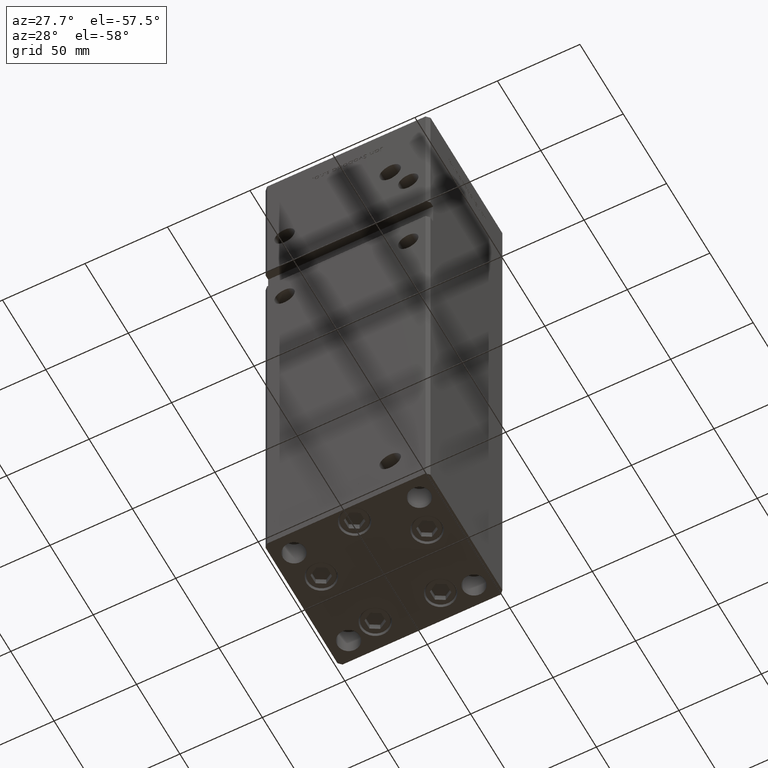
[diagram: clean part render]
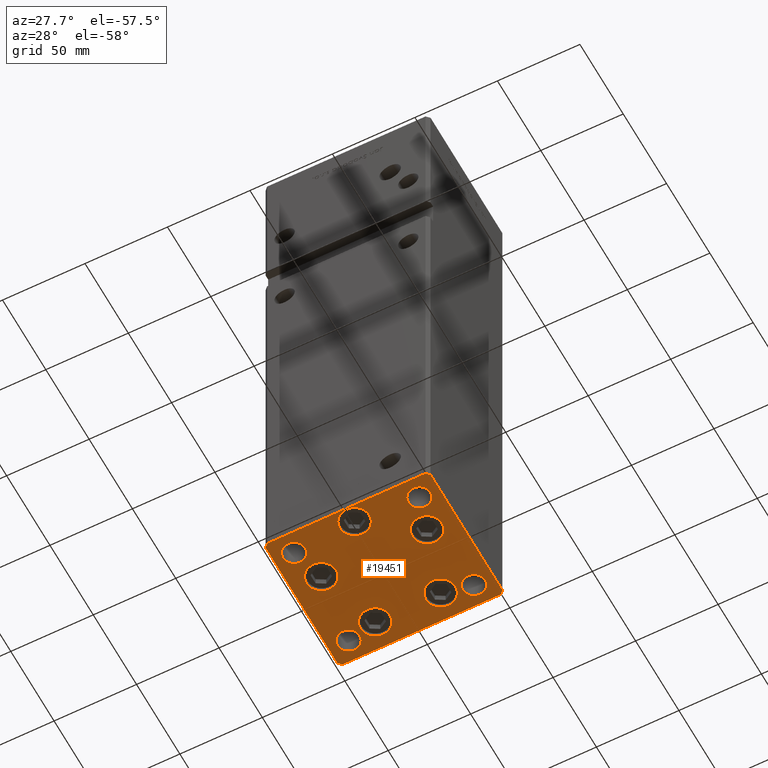
[diagram: same view with one face highlighted and labeled with its STEP entity id]
A machine part, auxiliary view. The second image highlights one B-rep face of the part: STEP entity #19451.
In plain terms, the highlighted planar face has unit normal (0, 0, -1).
Its self-contained STEP definition (entity closure, byte-faithful):
#100 = DIRECTION ( 'NONE',  ( 1.000000000000000000, 0.000000000000000000, 0.000000000000000000 ) ) ;
#206 = AXIS2_PLACEMENT_3D ( 'NONE', #43637, #10034, #31532 ) ;
#555 = CARTESIAN_POINT ( 'NONE',  ( 9.000000000000003553, -34.00000000000000000, 0.000000000000000000 ) ) ;
#656 = ORIENTED_EDGE ( 'NONE', *, *, #43449, .T. ) ;
#711 = EDGE_LOOP ( 'NONE', ( #38527, #4896 ) ) ;
#969 = ORIENTED_EDGE ( 'NONE', *, *, #36350, .T. ) ;
#1832 = FACE_OUTER_BOUND ( 'NONE', #18169, .T. ) ;
#1983 = CARTESIAN_POINT ( 'NONE',  ( -41.05550741379015278, -11.33333333333333925, 0.000000000000000000 ) ) ;
#1986 = CIRCLE ( 'NONE', #7969, 9.000000000000001776 ) ;
#2117 = DIRECTION ( 'NONE',  ( 1.000000000000000000, 0.000000000000000000, 0.000000000000000000 ) ) ;
#2321 = LINE ( 'NONE', #50699, #32589 ) ;
#2326 = EDGE_CURVE ( 'NONE', #43005, #35979, #8849, .T. ) ;
#2511 = CARTESIAN_POINT ( 'NONE',  ( 44.75000000000000000, -31.49999999999999289, 0.000000000000000000 ) ) ;
#3044 = AXIS2_PLACEMENT_3D ( 'NONE', #16014, #48044, #35399 ) ;
#3196 = CIRCLE ( 'NONE', #27235, 6.749999999999999112 ) ;
#3468 = DIRECTION ( 'NONE',  ( 0.000000000000000000, -0.000000000000000000, -1.000000000000000000 ) ) ;
#3713 = DIRECTION ( 'NONE',  ( 1.000000000000000000, 0.000000000000000000, 0.000000000000000000 ) ) ;
#4017 = VERTEX_POINT ( 'NONE', #12299 ) ;
#4048 = CARTESIAN_POINT ( 'NONE',  ( 19.82068048781373193, 27.62500000000000000, 0.000000000000000000 ) ) ;
#4236 = CARTESIAN_POINT ( 'NONE',  ( -47.99999999999999289, -43.50000000000001421, 0.000000000000000000 ) ) ;
#4896 = ORIENTED_EDGE ( 'NONE', *, *, #49421, .T. ) ;
#5097 = EDGE_CURVE ( 'NONE', #40206, #34724, #47684, .T. ) ;
#5565 = EDGE_LOOP ( 'NONE', ( #16692, #46830 ) ) ;
#5755 = EDGE_CURVE ( 'NONE', #30531, #30189, #29383, .T. ) ;
#5803 = EDGE_LOOP ( 'NONE', ( #16430, #17263 ) ) ;
#5999 = EDGE_CURVE ( 'NONE', #16109, #51901, #24224, .T. ) ;
#6126 = DIRECTION ( 'NONE',  ( -0.7071067811865474617, 0.7071067811865474617, 0.000000000000000000 ) ) ;
#6145 = FACE_BOUND ( 'NONE', #33460, .T. ) ;
#6253 = EDGE_CURVE ( 'NONE', #20042, #9157, #25957, .T. ) ;
#6361 = VERTEX_POINT ( 'NONE', #10983 ) ;
#6769 = VERTEX_POINT ( 'NONE', #42243 ) ;
#7045 = CARTESIAN_POINT ( 'NONE',  ( -23.05550741379014923, -11.33333333333333748, 0.000000000000000000 ) ) ;
#7076 = DIRECTION ( 'NONE',  ( 1.000000000000000000, 0.000000000000000000, 0.000000000000000000 ) ) ;
#7083 = CARTESIAN_POINT ( 'NONE',  ( -47.99999999999999289, -43.50000000000001421, 0.000000000000000000 ) ) ;
#7113 = VECTOR ( 'NONE', #23451, 1000.000000000000000 ) ;
#7114 = EDGE_CURVE ( 'NONE', #44183, #26660, #42329, .T. ) ;
#7521 = DIRECTION ( 'NONE',  ( -0.000000000000000000, 0.000000000000000000, 1.000000000000000000 ) ) ;
#7699 = CARTESIAN_POINT ( 'NONE',  ( 19.82068048781373193, 27.62500000000000000, 0.000000000000000000 ) ) ;
#7741 = CARTESIAN_POINT ( 'NONE',  ( -37.99999999999999289, -31.50000000000000000, 0.000000000000000000 ) ) ;
#7889 = CIRCLE ( 'NONE', #41385, 8.999999999999998224 ) ;
#7969 = AXIS2_PLACEMENT_3D ( 'NONE', #16335, #40561, #41343 ) ;
#8769 = AXIS2_PLACEMENT_3D ( 'NONE', #30940, #43306, #47071 ) ;
#8849 = CIRCLE ( 'NONE', #45785, 6.749999999999999112 ) ;
#9157 = VERTEX_POINT ( 'NONE', #7045 ) ;
#9266 = DIRECTION ( 'NONE',  ( 0.7071067811865463515, 0.7071067811865487940, 0.000000000000000000 ) ) ;
#9983 = DIRECTION ( 'NONE',  ( -0.000000000000000000, 0.000000000000000000, 1.000000000000000000 ) ) ;
#10034 = DIRECTION ( 'NONE',  ( -0.000000000000000000, 0.000000000000000000, 1.000000000000000000 ) ) ;
#10175 = CARTESIAN_POINT ( 'NONE',  ( 0.000000000000000000, 0.000000000000000000, 0.000000000000000000 ) ) ;
#10441 = PLANE ( 'NONE',  #33256 ) ;
#10757 = DIRECTION ( 'NONE',  ( 0.000000000000000000, -0.000000000000000000, -1.000000000000000000 ) ) ;
#10983 = CARTESIAN_POINT ( 'NONE',  ( 23.05550741379014923, -11.33333333333333037, 0.000000000000000000 ) ) ;
#10985 = EDGE_LOOP ( 'NONE', ( #39627, #11765 ) ) ;
#11017 = CIRCLE ( 'NONE', #25622, 6.749999999999999112 ) ;
#11217 = EDGE_CURVE ( 'NONE', #25757, #26474, #42908, .T. ) ;
#11522 = ORIENTED_EDGE ( 'NONE', *, *, #39246, .T. ) ;
#11554 = CARTESIAN_POINT ( 'NONE',  ( -38.00000000000000000, 31.50000000000000000, 0.000000000000000000 ) ) ;
#11696 = EDGE_LOOP ( 'NONE', ( #17966, #17996 ) ) ;
#11765 = ORIENTED_EDGE ( 'NONE', *, *, #52899, .T. ) ;
#12077 = CARTESIAN_POINT ( 'NONE',  ( -37.99999999999999289, -31.50000000000000000, 0.000000000000000000 ) ) ;
#12252 = CARTESIAN_POINT ( 'NONE',  ( -10.82068048781373903, 27.62499999999999645, 0.000000000000000000 ) ) ;
#12299 = CARTESIAN_POINT ( 'NONE',  ( 41.05550741379015278, -11.33333333333332860, 0.000000000000000000 ) ) ;
#12768 = CIRCLE ( 'NONE', #43724, 9.000000000000001776 ) ;
#12834 = CARTESIAN_POINT ( 'NONE',  ( 38.00000000000000000, -31.49999999999999289, 0.000000000000000000 ) ) ;
#12898 = DIRECTION ( 'NONE',  ( 0.000000000000000000, -0.000000000000000000, -1.000000000000000000 ) ) ;
#13564 = CARTESIAN_POINT ( 'NONE',  ( 47.99999999999999289, -43.50000000000001421, 0.000000000000000000 ) ) ;
#14549 = CIRCLE ( 'NONE', #44614, 9.000000000000000000 ) ;
#14659 = CARTESIAN_POINT ( 'NONE',  ( -50.00000000000000711, 41.49999999999995026, 0.000000000000000000 ) ) ;
#15310 = DIRECTION ( 'NONE',  ( 1.000000000000000000, 0.000000000000000000, 0.000000000000000000 ) ) ;
#15386 = DIRECTION ( 'NONE',  ( -0.000000000000000000, 0.000000000000000000, 1.000000000000000000 ) ) ;
#15706 = CARTESIAN_POINT ( 'NONE',  ( 32.05550741379015278, -11.33333333333333037, 0.000000000000000000 ) ) ;
#15972 = DIRECTION ( 'NONE',  ( 0.000000000000000000, -0.000000000000000000, -1.000000000000000000 ) ) ;
#16014 = CARTESIAN_POINT ( 'NONE',  ( 4.163799117101000559E-15, -34.00000000000000000, 0.000000000000000000 ) ) ;
#16038 = EDGE_CURVE ( 'NONE', #39751, #27044, #42945, .T. ) ;
#16109 = VERTEX_POINT ( 'NONE', #12252 ) ;
#16134 = CIRCLE ( 'NONE', #46197, 9.000000000000001776 ) ;
#16335 = CARTESIAN_POINT ( 'NONE',  ( -32.05550741379015278, -11.33333333333333925, 0.000000000000000000 ) ) ;
#16371 = ORIENTED_EDGE ( 'NONE', *, *, #16038, .T. ) ;
#16430 = ORIENTED_EDGE ( 'NONE', *, *, #34897, .T. ) ;
#16692 = ORIENTED_EDGE ( 'NONE', *, *, #26252, .F. ) ;
#16800 = VERTEX_POINT ( 'NONE', #25483 ) ;
#16967 = EDGE_CURVE ( 'NONE', #6769, #39751, #31920, .T. ) ;
#17263 = ORIENTED_EDGE ( 'NONE', *, *, #34209, .T. ) ;
#17400 = CARTESIAN_POINT ( 'NONE',  ( -50.00000000000000000, -41.50000000000000000, 0.000000000000000000 ) ) ;
#17461 = VERTEX_POINT ( 'NONE', #26410 ) ;
#17613 = CARTESIAN_POINT ( 'NONE',  ( 47.99999999999990763, 43.50000000000000000, 0.000000000000000000 ) ) ;
#17966 = ORIENTED_EDGE ( 'NONE', *, *, #21962, .T. ) ;
#17985 = EDGE_CURVE ( 'NONE', #30189, #30531, #3196, .T. ) ;
#17996 = ORIENTED_EDGE ( 'NONE', *, *, #5999, .T. ) ;
#18028 = CARTESIAN_POINT ( 'NONE',  ( 38.00000000000000000, 31.49999999999999289, 0.000000000000000000 ) ) ;
#18151 = DIRECTION ( 'NONE',  ( 0.7071067811865474617, -0.7071067811865474617, 0.000000000000000000 ) ) ;
#18169 = EDGE_LOOP ( 'NONE', ( #20315, #20389, #52335, #656, #32835, #16371, #51335, #22387 ) ) ;
#18215 = CARTESIAN_POINT ( 'NONE',  ( -19.82068048781373903, 27.62499999999999645, 0.000000000000000000 ) ) ;
#18491 = CARTESIAN_POINT ( 'NONE',  ( -32.05550741379015278, -11.33333333333333925, 0.000000000000000000 ) ) ;
#19005 = CARTESIAN_POINT ( 'NONE',  ( 49.99999999999992184, 41.49999999999998579, 0.000000000000000000 ) ) ;
#19026 = DIRECTION ( 'NONE',  ( 1.000000000000000000, 0.000000000000000000, 0.000000000000000000 ) ) ;
#19451 = ADVANCED_FACE ( 'NONE', ( #26823, #38399, #6145, #51022, #51560, #47275, #22234, #39205, #1832, #30875 ), #10441, .T. ) ;
#19604 = DIRECTION ( 'NONE',  ( 0.000000000000000000, -0.000000000000000000, -1.000000000000000000 ) ) ;
#20042 = VERTEX_POINT ( 'NONE', #1983 ) ;
#20315 = ORIENTED_EDGE ( 'NONE', *, *, #22267, .T. ) ;
#20389 = ORIENTED_EDGE ( 'NONE', *, *, #5097, .T. ) ;
#21411 = CARTESIAN_POINT ( 'NONE',  ( 31.25000000000000000, 31.49999999999999289, 0.000000000000000000 ) ) ;
#21679 = VERTEX_POINT ( 'NONE', #23910 ) ;
#21962 = EDGE_CURVE ( 'NONE', #51901, #16109, #14549, .T. ) ;
#21988 = VECTOR ( 'NONE', #6126, 1000.000000000000114 ) ;
#22234 = FACE_BOUND ( 'NONE', #5803, .T. ) ;
#22267 = EDGE_CURVE ( 'NONE', #26474, #40206, #2321, .T. ) ;
#22387 = ORIENTED_EDGE ( 'NONE', *, *, #11217, .T. ) ;
#22506 = DIRECTION ( 'NONE',  ( 0.000000000000000000, -0.000000000000000000, -1.000000000000000000 ) ) ;
#22811 = VECTOR ( 'NONE', #39850, 1000.000000000000000 ) ;
#22814 = CARTESIAN_POINT ( 'NONE',  ( -31.24999999999999289, -31.50000000000000000, 0.000000000000000000 ) ) ;
#23451 = DIRECTION ( 'NONE',  ( 1.000000000000000000, 0.000000000000000000, 0.000000000000000000 ) ) ;
#23910 = CARTESIAN_POINT ( 'NONE',  ( -8.999999999999996447, -34.00000000000000000, 0.000000000000000000 ) ) ;
#24119 = DIRECTION ( 'NONE',  ( 0.000000000000000000, -0.000000000000000000, -1.000000000000000000 ) ) ;
#24131 = DIRECTION ( 'NONE',  ( 1.000000000000000000, 0.000000000000000000, 0.000000000000000000 ) ) ;
#24224 = CIRCLE ( 'NONE', #8769, 9.000000000000000000 ) ;
#24465 = CIRCLE ( 'NONE', #3044, 9.000000000000000000 ) ;
#24928 = CARTESIAN_POINT ( 'NONE',  ( -44.74999999999999289, -31.50000000000000000, 0.000000000000000000 ) ) ;
#25215 = DIRECTION ( 'NONE',  ( 0.000000000000000000, -0.000000000000000000, -1.000000000000000000 ) ) ;
#25483 = CARTESIAN_POINT ( 'NONE',  ( 50.00000000000000000, -41.49999999999999289, 0.000000000000000000 ) ) ;
#25622 = AXIS2_PLACEMENT_3D ( 'NONE', #12077, #19604, #15310 ) ;
#25757 = VERTEX_POINT ( 'NONE', #51498 ) ;
#25957 = CIRCLE ( 'NONE', #32877, 9.000000000000001776 ) ;
#26167 = VERTEX_POINT ( 'NONE', #2511 ) ;
#26193 = LINE ( 'NONE', #34276, #42051 ) ;
#26252 = EDGE_CURVE ( 'NONE', #35979, #43005, #34816, .T. ) ;
#26410 = CARTESIAN_POINT ( 'NONE',  ( 28.82068048781372838, 27.62500000000000000, 0.000000000000000000 ) ) ;
#26474 = VERTEX_POINT ( 'NONE', #17400 ) ;
#26660 = VERTEX_POINT ( 'NONE', #24928 ) ;
#26751 = EDGE_CURVE ( 'NONE', #21679, #28992, #24465, .T. ) ;
#26819 = ORIENTED_EDGE ( 'NONE', *, *, #7114, .T. ) ;
#26823 = FACE_BOUND ( 'NONE', #11696, .T. ) ;
#27044 = VERTEX_POINT ( 'NONE', #51999 ) ;
#27235 = AXIS2_PLACEMENT_3D ( 'NONE', #11554, #7521, #41896 ) ;
#27491 = CARTESIAN_POINT ( 'NONE',  ( 38.00000000000000000, 31.49999999999999289, 0.000000000000000000 ) ) ;
#27931 = DIRECTION ( 'NONE',  ( 1.000000000000000000, 0.000000000000000000, 0.000000000000000000 ) ) ;
#28066 = EDGE_CURVE ( 'NONE', #27044, #25757, #35279, .T. ) ;
#28679 = CARTESIAN_POINT ( 'NONE',  ( -31.25000000000000000, 31.50000000000000000, 0.000000000000000000 ) ) ;
#28992 = VERTEX_POINT ( 'NONE', #555 ) ;
#29383 = CIRCLE ( 'NONE', #206, 6.749999999999999112 ) ;
#29562 = CARTESIAN_POINT ( 'NONE',  ( -28.82068048781373548, 27.62499999999999645, 0.000000000000000000 ) ) ;
#29644 = ORIENTED_EDGE ( 'NONE', *, *, #32784, .T. ) ;
#29797 = CARTESIAN_POINT ( 'NONE',  ( 10.82068048781373193, 27.62500000000000000, 0.000000000000000000 ) ) ;
#30189 = VERTEX_POINT ( 'NONE', #28679 ) ;
#30531 = VERTEX_POINT ( 'NONE', #35376 ) ;
#30600 = DIRECTION ( 'NONE',  ( -0.000000000000000000, 0.000000000000000000, 1.000000000000000000 ) ) ;
#30701 = CIRCLE ( 'NONE', #42712, 9.000000000000000000 ) ;
#30846 = DIRECTION ( 'NONE',  ( -1.000000000000000000, -3.614007241618350743E-16, 0.000000000000000000 ) ) ;
#30875 = FACE_BOUND ( 'NONE', #51555, .T. ) ;
#30940 = CARTESIAN_POINT ( 'NONE',  ( -19.82068048781373903, 27.62499999999999645, 0.000000000000000000 ) ) ;
#31532 = DIRECTION ( 'NONE',  ( 1.000000000000000000, 0.000000000000000000, 0.000000000000000000 ) ) ;
#31771 = ORIENTED_EDGE ( 'NONE', *, *, #34828, .T. ) ;
#31920 = LINE ( 'NONE', #19005, #21988 ) ;
#32589 = VECTOR ( 'NONE', #18151, 1000.000000000000114 ) ;
#32784 = EDGE_CURVE ( 'NONE', #28992, #21679, #30701, .T. ) ;
#32819 = ORIENTED_EDGE ( 'NONE', *, *, #5755, .F. ) ;
#32835 = ORIENTED_EDGE ( 'NONE', *, *, #16967, .T. ) ;
#32877 = AXIS2_PLACEMENT_3D ( 'NONE', #18491, #47544, #19026 ) ;
#33208 = DIRECTION ( 'NONE',  ( 0.000000000000000000, -0.000000000000000000, -1.000000000000000000 ) ) ;
#33256 = AXIS2_PLACEMENT_3D ( 'NONE', #10175, #30600, #51295 ) ;
#33383 = CARTESIAN_POINT ( 'NONE',  ( 4.163799117101000559E-15, -34.00000000000000000, 0.000000000000000000 ) ) ;
#33460 = EDGE_LOOP ( 'NONE', ( #969, #31771 ) ) ;
#33472 = DIRECTION ( 'NONE',  ( -1.003213576468515193E-15, 1.000000000000000000, 0.000000000000000000 ) ) ;
#34188 = CIRCLE ( 'NONE', #41018, 6.749999999999999112 ) ;
#34209 = EDGE_CURVE ( 'NONE', #42763, #26167, #34188, .T. ) ;
#34276 = CARTESIAN_POINT ( 'NONE',  ( 50.00000000000000000, -41.49999999999999289, 0.000000000000000000 ) ) ;
#34724 = VERTEX_POINT ( 'NONE', #37878 ) ;
#34816 = CIRCLE ( 'NONE', #52830, 6.749999999999999112 ) ;
#34828 = EDGE_CURVE ( 'NONE', #4017, #6361, #16134, .T. ) ;
#34876 = CARTESIAN_POINT ( 'NONE',  ( 47.99999999999990763, 43.50000000000000000, 0.000000000000000000 ) ) ;
#34897 = EDGE_CURVE ( 'NONE', #26167, #42763, #42792, .T. ) ;
#35279 = LINE ( 'NONE', #35822, #22811 ) ;
#35376 = CARTESIAN_POINT ( 'NONE',  ( -44.75000000000000000, 31.50000000000000000, 0.000000000000000000 ) ) ;
#35399 = DIRECTION ( 'NONE',  ( 1.000000000000000000, 0.000000000000000000, 0.000000000000000000 ) ) ;
#35822 = CARTESIAN_POINT ( 'NONE',  ( -48.00000000000000711, 43.49999999999996447, 0.000000000000000000 ) ) ;
#35979 = VERTEX_POINT ( 'NONE', #36025 ) ;
#36025 = CARTESIAN_POINT ( 'NONE',  ( 44.75000000000000000, 31.49999999999999289, 0.000000000000000000 ) ) ;
#36350 = EDGE_CURVE ( 'NONE', #6361, #4017, #12768, .T. ) ;
#37093 = VERTEX_POINT ( 'NONE', #29797 ) ;
#37142 = DIRECTION ( 'NONE',  ( 0.000000000000000000, -0.000000000000000000, -1.000000000000000000 ) ) ;
#37288 = VECTOR ( 'NONE', #43176, 1000.000000000000000 ) ;
#37878 = CARTESIAN_POINT ( 'NONE',  ( 47.99999999999999289, -43.50000000000001421, 0.000000000000000000 ) ) ;
#38399 = FACE_BOUND ( 'NONE', #711, .T. ) ;
#38527 = ORIENTED_EDGE ( 'NONE', *, *, #43286, .T. ) ;
#39205 = FACE_BOUND ( 'NONE', #53196, .T. ) ;
#39246 = EDGE_CURVE ( 'NONE', #26660, #44183, #11017, .T. ) ;
#39627 = ORIENTED_EDGE ( 'NONE', *, *, #6253, .T. ) ;
#39751 = VERTEX_POINT ( 'NONE', #17613 ) ;
#39850 = DIRECTION ( 'NONE',  ( -0.7071067811865463515, -0.7071067811865487940, 0.000000000000000000 ) ) ;
#40206 = VERTEX_POINT ( 'NONE', #4236 ) ;
#40561 = DIRECTION ( 'NONE',  ( 0.000000000000000000, -0.000000000000000000, -1.000000000000000000 ) ) ;
#40638 = EDGE_CURVE ( 'NONE', #34724, #16800, #42073, .T. ) ;
#41018 = AXIS2_PLACEMENT_3D ( 'NONE', #12834, #3468, #24131 ) ;
#41093 = AXIS2_PLACEMENT_3D ( 'NONE', #48641, #25215, #53173 ) ;
#41343 = DIRECTION ( 'NONE',  ( 1.000000000000000000, 0.000000000000000000, 0.000000000000000000 ) ) ;
#41385 = AXIS2_PLACEMENT_3D ( 'NONE', #4048, #12898, #52699 ) ;
#41896 = DIRECTION ( 'NONE',  ( 1.000000000000000000, 0.000000000000000000, 0.000000000000000000 ) ) ;
#42051 = VECTOR ( 'NONE', #33472, 1000.000000000000000 ) ;
#42073 = LINE ( 'NONE', #13564, #46269 ) ;
#42243 = CARTESIAN_POINT ( 'NONE',  ( 49.99999999999992184, 41.49999999999998579, 0.000000000000000000 ) ) ;
#42329 = CIRCLE ( 'NONE', #50019, 6.749999999999999112 ) ;
#42712 = AXIS2_PLACEMENT_3D ( 'NONE', #33383, #37142, #45754 ) ;
#42763 = VERTEX_POINT ( 'NONE', #46225 ) ;
#42789 = DIRECTION ( 'NONE',  ( 1.000000000000000000, 0.000000000000000000, 0.000000000000000000 ) ) ;
#42792 = CIRCLE ( 'NONE', #41093, 6.749999999999999112 ) ;
#42908 = LINE ( 'NONE', #14659, #37288 ) ;
#42945 = LINE ( 'NONE', #34876, #50335 ) ;
#43005 = VERTEX_POINT ( 'NONE', #21411 ) ;
#43176 = DIRECTION ( 'NONE',  ( 8.360113137237628665E-17, -1.000000000000000000, 0.000000000000000000 ) ) ;
#43286 = EDGE_CURVE ( 'NONE', #37093, #17461, #49748, .T. ) ;
#43306 = DIRECTION ( 'NONE',  ( 0.000000000000000000, -0.000000000000000000, -1.000000000000000000 ) ) ;
#43449 = EDGE_CURVE ( 'NONE', #16800, #6769, #26193, .T. ) ;
#43637 = CARTESIAN_POINT ( 'NONE',  ( -38.00000000000000000, 31.50000000000000000, 0.000000000000000000 ) ) ;
#43724 = AXIS2_PLACEMENT_3D ( 'NONE', #15706, #15972, #100 ) ;
#44183 = VERTEX_POINT ( 'NONE', #22814 ) ;
#44614 = AXIS2_PLACEMENT_3D ( 'NONE', #18215, #22506, #2117 ) ;
#45574 = DIRECTION ( 'NONE',  ( 1.000000000000000000, 0.000000000000000000, 0.000000000000000000 ) ) ;
#45754 = DIRECTION ( 'NONE',  ( 1.000000000000000000, 0.000000000000000000, 0.000000000000000000 ) ) ;
#45785 = AXIS2_PLACEMENT_3D ( 'NONE', #18028, #9983, #42789 ) ;
#46197 = AXIS2_PLACEMENT_3D ( 'NONE', #47587, #10757, #27931 ) ;
#46225 = CARTESIAN_POINT ( 'NONE',  ( 31.25000000000000000, -31.49999999999999289, 0.000000000000000000 ) ) ;
#46269 = VECTOR ( 'NONE', #9266, 1000.000000000000000 ) ;
#46830 = ORIENTED_EDGE ( 'NONE', *, *, #2326, .F. ) ;
#47071 = DIRECTION ( 'NONE',  ( 1.000000000000000000, 0.000000000000000000, 0.000000000000000000 ) ) ;
#47275 = FACE_BOUND ( 'NONE', #5565, .T. ) ;
#47544 = DIRECTION ( 'NONE',  ( 0.000000000000000000, -0.000000000000000000, -1.000000000000000000 ) ) ;
#47587 = CARTESIAN_POINT ( 'NONE',  ( 32.05550741379015278, -11.33333333333333037, 0.000000000000000000 ) ) ;
#47684 = LINE ( 'NONE', #7083, #7113 ) ;
#48044 = DIRECTION ( 'NONE',  ( 0.000000000000000000, -0.000000000000000000, -1.000000000000000000 ) ) ;
#48641 = CARTESIAN_POINT ( 'NONE',  ( 38.00000000000000000, -31.49999999999999289, 0.000000000000000000 ) ) ;
#49421 = EDGE_CURVE ( 'NONE', #17461, #37093, #7889, .T. ) ;
#49748 = CIRCLE ( 'NONE', #53193, 8.999999999999998224 ) ;
#50019 = AXIS2_PLACEMENT_3D ( 'NONE', #7741, #24119, #3713 ) ;
#50195 = ORIENTED_EDGE ( 'NONE', *, *, #17985, .F. ) ;
#50335 = VECTOR ( 'NONE', #30846, 1000.000000000000000 ) ;
#50699 = CARTESIAN_POINT ( 'NONE',  ( -50.00000000000000000, -41.50000000000000000, 0.000000000000000000 ) ) ;
#51022 = FACE_BOUND ( 'NONE', #52887, .T. ) ;
#51295 = DIRECTION ( 'NONE',  ( 1.000000000000000000, 0.000000000000000000, 0.000000000000000000 ) ) ;
#51335 = ORIENTED_EDGE ( 'NONE', *, *, #28066, .T. ) ;
#51498 = CARTESIAN_POINT ( 'NONE',  ( -50.00000000000000711, 41.49999999999995026, 0.000000000000000000 ) ) ;
#51555 = EDGE_LOOP ( 'NONE', ( #26819, #11522 ) ) ;
#51560 = FACE_BOUND ( 'NONE', #10985, .T. ) ;
#51901 = VERTEX_POINT ( 'NONE', #29562 ) ;
#51999 = CARTESIAN_POINT ( 'NONE',  ( -48.00000000000000711, 43.49999999999996447, 0.000000000000000000 ) ) ;
#52208 = ORIENTED_EDGE ( 'NONE', *, *, #26751, .T. ) ;
#52335 = ORIENTED_EDGE ( 'NONE', *, *, #40638, .T. ) ;
#52699 = DIRECTION ( 'NONE',  ( 1.000000000000000000, 0.000000000000000000, 0.000000000000000000 ) ) ;
#52830 = AXIS2_PLACEMENT_3D ( 'NONE', #27491, #15386, #7076 ) ;
#52887 = EDGE_LOOP ( 'NONE', ( #52208, #29644 ) ) ;
#52899 = EDGE_CURVE ( 'NONE', #9157, #20042, #1986, .T. ) ;
#53173 = DIRECTION ( 'NONE',  ( 1.000000000000000000, 0.000000000000000000, 0.000000000000000000 ) ) ;
#53193 = AXIS2_PLACEMENT_3D ( 'NONE', #7699, #33208, #45574 ) ;
#53196 = EDGE_LOOP ( 'NONE', ( #50195, #32819 ) ) ;